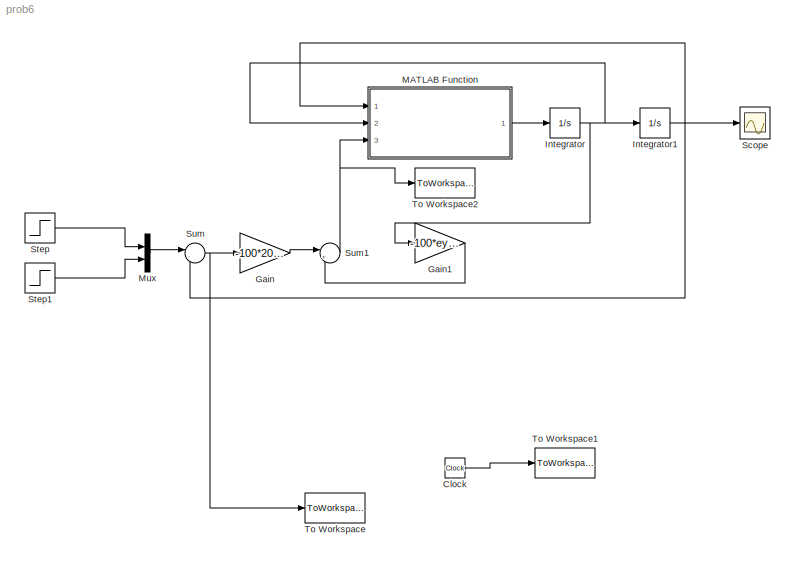
MODEL prob6
KIND model
BLOCK [Clock] Clock
  Decimation = 10
  SID = 16
BLOCK [Gain] Gain
  Gain = -100*20*eye(2,2)
  Multiplication = Matrix(K*u)
  OutDataTypeStr = Inherit: Inherit via internal rule
  ParamDataTypeStr = Inherit: Inherit via internal rule
  SID = 9
  SaturateOnIntegerOverflow = off
BLOCK [Gain] Gain1
  Gain = -100*eye(2,2)
  Multiplication = Matrix(K*u)
  OutDataTypeStr = Inherit: Inherit via internal rule
  ParamDataTypeStr = Inherit: Inherit via internal rule
  SID = 11
  SaturateOnIntegerOverflow = off
BLOCK [Integrator] Integrator
  InitialCondition = [0;0];
  Ports = [1, 1]
  SID = 2
BLOCK [Integrator] Integrator1
  InitialCondition = [0;0];
  Ports = [1, 1]
  SID = 3
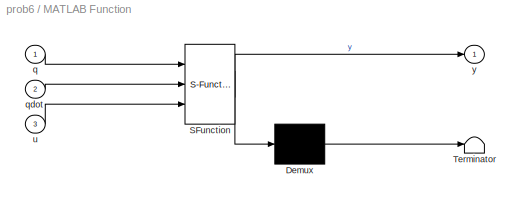
BLOCK [SubSystem] MATLAB Function
  ErrorFcn = Stateflow.Translate.translate
  FunctionWithSeparateData = off
  MaskDescription = Embedded MATLAB block
  MaskDisplay = disp('fcn');
  MaskHideContents = off
  MaskIconFrame = on
  MaskIconOpaque = off
  MaskIconRotate = none
  MaskIconUnits = normalized
  MaskPortRotate = default
  MaskSelfModifiable = on
  MaskType = Stateflow
  MinAlgLoopOccurrences = off
  Opaque = off
  PermitHierarchicalResolution = ExplicitOnly
  Ports = [3, 1]
  PropExecContextOutsideSubsystem = off
  RTWSystemCode = Auto
  RequestExecContextInheritance = off
  SID = 1
  TreatAsAtomicUnit = on
BLOCK [Demux] MATLAB Function/ Demux 
  Outputs = 1
  Ports = [1, 1]
  SID = 1::15
BLOCK [S-Function] MATLAB Function/ SFunction 
  EnableBusSupport = on
  FunctionName = sf_sfun
  PortCounts = [3 2]
  Ports = [3, 2]
  SID = 1::14
  Tag = Stateflow S-Function prob6 2
BLOCK [Terminator] MATLAB Function/ Terminator 
  SID = 1::17
BLOCK [Inport] MATLAB Function/q
  IconDisplay = Port number
  SID = 1::1
BLOCK [Inport] MATLAB Function/qdot
  IconDisplay = Port number
  Port = 2
  SID = 1::18
BLOCK [Inport] MATLAB Function/u
  IconDisplay = Port number
  Port = 3
  SID = 1::19
BLOCK [Outport] MATLAB Function/y
  IconDisplay = Port number
  SID = 1::5
BLOCK [Mux] Mux
  DisplayOption = bar
  Inputs = 2
  Ports = [2, 1]
  SID = 7
BLOCK [Scope] Scope
  DataFormat = StructureWithTime
  Floating = off
  NumInputPorts = 1
  Ports = [1]
  SID = 12
  SampleTime = 0
  ZoomMode = yonly
BLOCK [Step] Step
  SID = 4
  SampleTime = 0
  Time = 0
BLOCK [Step] Step1
  After = 2
  SID = 5
  SampleTime = 0
  Time = 0
BLOCK [Sum] Sum
  IconShape = round
  InputSameDT = off
  Inputs = |-+
  OutDataTypeStr = Inherit: Inherit via internal rule
  Ports = [2, 1]
  SID = 8
  SaturateOnIntegerOverflow = off
BLOCK [Sum] Sum1
  IconShape = round
  InputSameDT = off
  Inputs = |++
  OutDataTypeStr = Inherit: Inherit via internal rule
  Ports = [2, 1]
  SID = 10
  SaturateOnIntegerOverflow = off
BLOCK [ToWorkspace] To Workspace
  MaxDataPoints = inf
  Ports = [1]
  SID = 13
  SampleTime = -1
  SaveFormat = Array
  VariableName = qtilde
BLOCK [ToWorkspace] To Workspace1
  MaxDataPoints = inf
  Ports = [1]
  SID = 14
  SampleTime = -1
  SaveFormat = Array
  VariableName = time
BLOCK [ToWorkspace] To Workspace2
  MaxDataPoints = inf
  Ports = [1]
  SID = 15
  SampleTime = -1
  SaveFormat = Array
  VariableName = u
LINE Clock:1 -> To Workspace1:1
LINE Gain1:1 -> Sum1:2
LINE Gain:1 -> Sum1:1
NET Integrator1:1 -> MATLAB Function:1, Scope:1, Sum:2
NET Integrator:1 -> Gain1:1, Integrator1:1, MATLAB Function:2
LINE MATLAB Function/ Demux :1 -> MATLAB Function/ Terminator :1
LINE MATLAB Function/ SFunction :1 -> MATLAB Function/ Demux :1
LINE MATLAB Function/ SFunction :2 -> MATLAB Function/y:1
LINE MATLAB Function/q:1 -> MATLAB Function/ SFunction :1
LINE MATLAB Function/qdot:1 -> MATLAB Function/ SFunction :2
LINE MATLAB Function/u:1 -> MATLAB Function/ SFunction :3
LINE MATLAB Function:1 -> Integrator:1
LINE Mux:1 -> Sum:1
LINE Step1:1 -> Mux:2
LINE Step:1 -> Mux:1
NET Sum1:1 -> MATLAB Function:3, To Workspace2:1
NET Sum:1 -> Gain:1, To Workspace:1
note: NET lines group one-source signal fan-out (src -> all destinations, sorted); 1:1 wires keep LINE
CHART MATLAB Function states=1 transitions=1
  STATE_LABEL 'eML_blk_kernel()'
